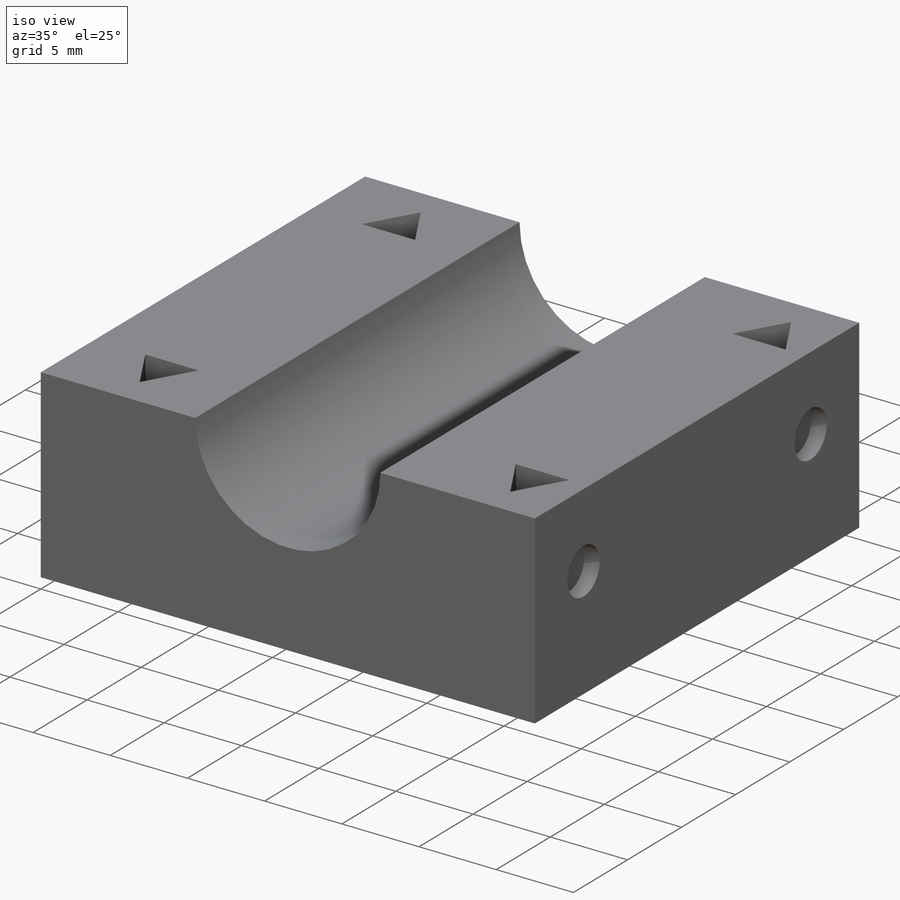
[diagram: iso view]
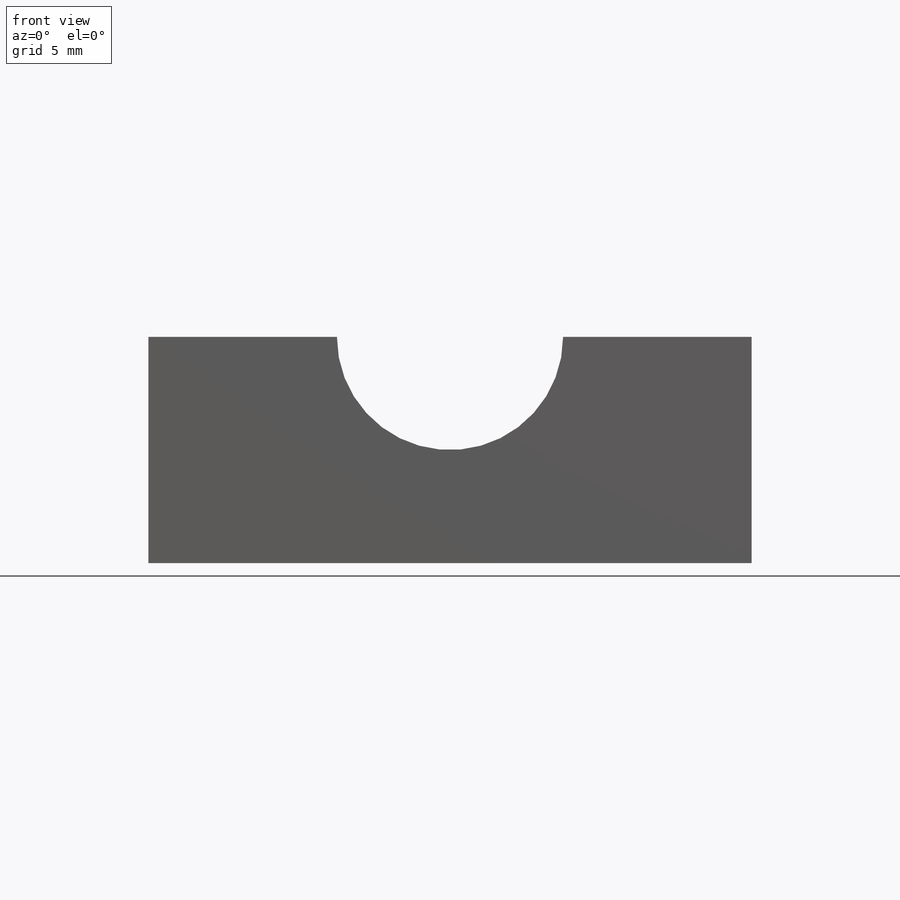
[diagram: front view]
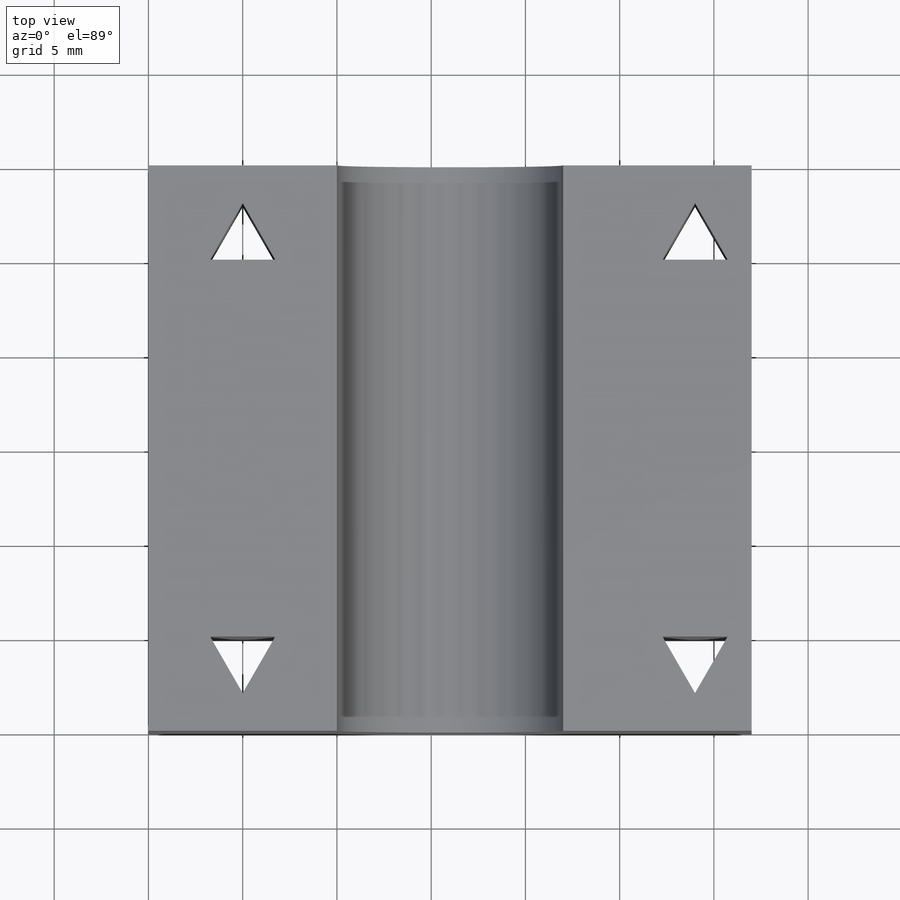
[diagram: top view]
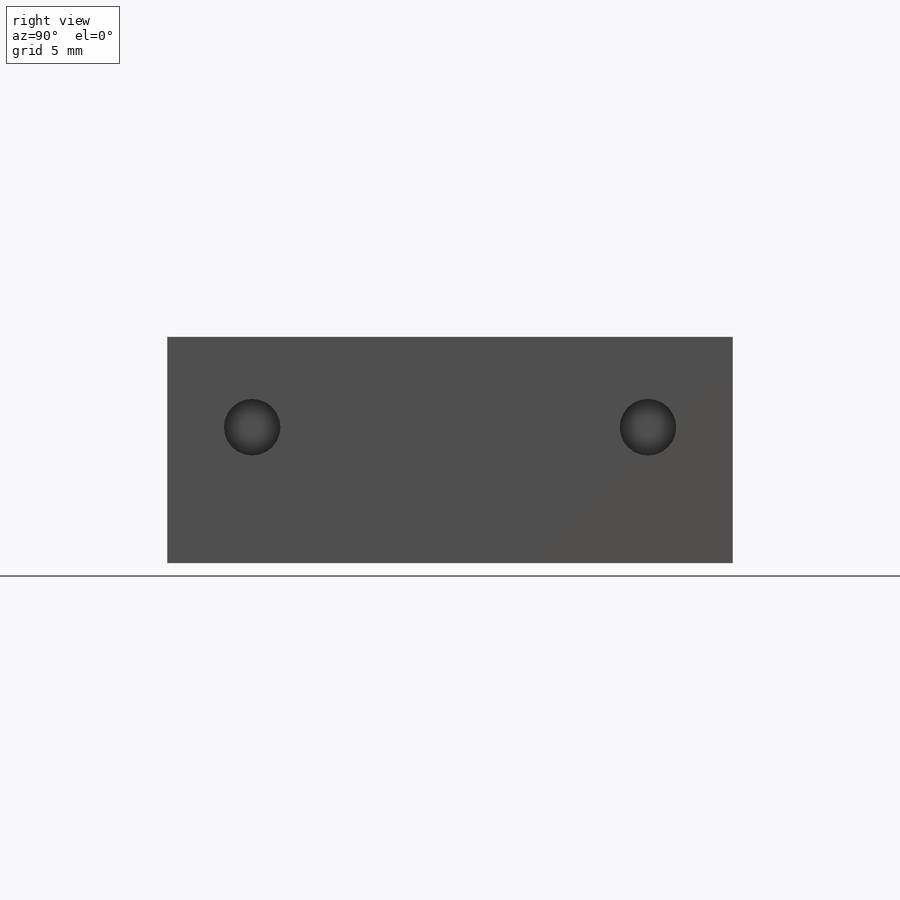
[diagram: right view]
SOLIDWORKS PART (.sldprt)
format: sldprt  version: not decoded by parser v0  size: 224,768 bytes
history: native  units: mm
features: sketch x4, cut_extrude x3, material x1, extrude x1 (+11 scaffold rows collapsed)
feature tree (20):
  scaffold x11  (default folders/planes/origin — collapsed)
  material  "Material <not specified>"
  sketch  "Sketch1"  dims[c1.D3=6.0mm c1.D4=7.0mm c1.D5=7.0mm c1.D1=12.0mm c1.D2=10.0mm c2.D4=12.0mm c2.D5=16.0mm]
  extrude  "Boss-Extrude1"  Depth=30mm
  sketch  "Sketch4"  dims[c1.D1=~2.16821mm c1.D2=2.0mm c2.D1=4.0mm c2.D2=4.0mm]
  cut_extrude  "Cut-Extrude1"  [1 undecoded]
  sketch  "Sketch5"  dims[c1.D1=3.0mm c1.D2=3.0mm c2.D1=7.2mm c2.D2=4.5mm c2.D3=21.0mm]
  cut_extrude  "Cut-Extrude2"  Depth=1mm
  sketch  "Sketch6"  dims[c1.D1=3.0mm c1.D2=3.0mm c2.D1=7.2mm c2.D2=4.5mm c2.D3=21.0mm c3.D2=4.5mm c3.D1=2.0]
  cut_extrude  "Cut-Extrude3"  Depth=1mm
decode coverage: 7 of 8 modeling features carry decoded parameters
note: ~ marks probable driven/reference dimensions
note: 1 parameter value undecoded
note: suppression state not decoded; provenance and decode notes live in map.json
